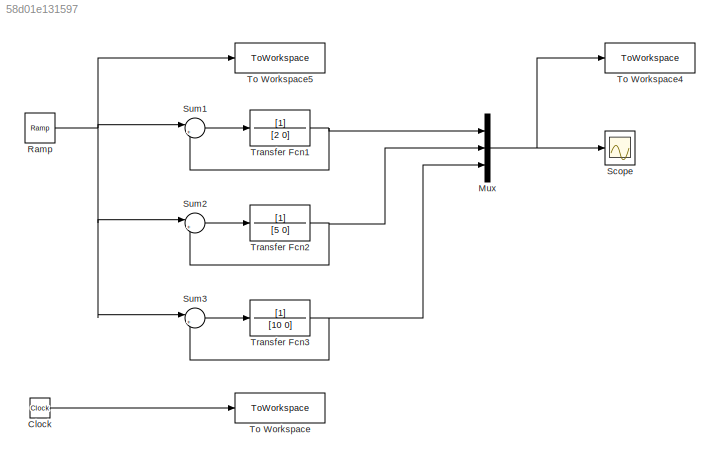
MODEL slx_58d01e131597
KIND model
CONFIG AbsTol = auto
CONFIG EnableMultiTasking = off
CONFIG FixedStep = auto
CONFIG MaxStep = auto
CONFIG MinStep = auto
CONFIG RelTol = 1e-3
CONFIG SampleTimeConstraint = Unconstrained
CONFIG SolverName = VariableStepAuto
CONFIG StartTime = 0.0
CONFIG StopTime = 10.0
BLOCK [Clock] Clock
BLOCK [Mux] Mux
  DisplayOption = bar
  Inputs = 3
BLOCK [Reference] Ramp  REF=simulink/Sources/Ramp
  SourceBlock = simulink/Sources/Ramp
  SourceType = Ramp
BLOCK [Scope] Scope
  Floating = off
  NumInputPorts = 1
  ScopeSpecificationString = Simulink.scopes.TimeScopeBlockCfg('CurrentConfiguration', extmgr.ConfigurationSet(extmgr.Configuration('Core','General UI',true),extmgr.Configuration('Core','Source UI',true),extmgr.Configuration('Sources','WiredSimulink',true,'DataLoggingVariableName','ScopeData1'),extmgr.Configuration('Visuals','Time Domain',true,'SerializedDisplays',{struct('MinYLimReal','-0.125','MaxYLimReal','1.125','YLabelRe...<+1473ch>
BLOCK [Sum] Sum1
  Inputs = |+-
BLOCK [Sum] Sum2
  Inputs = |+-
BLOCK [Sum] Sum3
  Inputs = |+-
BLOCK [ToWorkspace] To Workspace
  FixptAsFi = on
  MaxDataPoints = inf
  SampleTime = -1
  Save2DSignal = 2-D array (concatenate along first dimension)
  VariableName = t
BLOCK [ToWorkspace] To Workspace4
  FixptAsFi = on
  MaxDataPoints = inf
  SampleTime = -1
  Save2DSignal = 2-D array (concatenate along first dimension)
  VariableName = c
BLOCK [ToWorkspace] To Workspace5
  FixptAsFi = on
  MaxDataPoints = inf
  SampleTime = -1
  Save2DSignal = 2-D array (concatenate along first dimension)
  VariableName = r
BLOCK [TransferFcn] Transfer Fcn1
  Denominator = [2 0]
BLOCK [TransferFcn] Transfer Fcn2
  Denominator = [5 0]
BLOCK [TransferFcn] Transfer Fcn3
  Denominator = [10 0]
LINE Clock:1 -> To Workspace:1
NET Mux:1 -> Scope:1, To Workspace4:1
NET Ramp:1 -> Sum1:1, Sum2:1, Sum3:1, To Workspace5:1
LINE Sum1:1 -> Transfer Fcn1:1
LINE Sum2:1 -> Transfer Fcn2:1
LINE Sum3:1 -> Transfer Fcn3:1
NET Transfer Fcn1:1 -> Mux:1, Sum1:2
NET Transfer Fcn2:1 -> Mux:2, Sum2:2
NET Transfer Fcn3:1 -> Mux:3, Sum3:2
note: NET lines group one-source signal fan-out (src -> all destinations, sorted); 1:1 wires keep LINE
